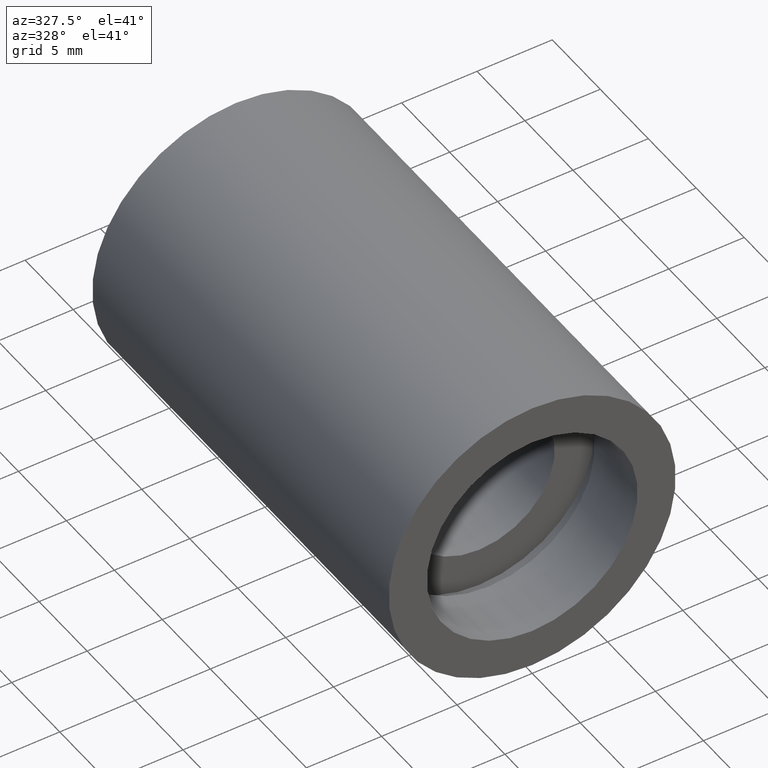
[diagram: clean part render]
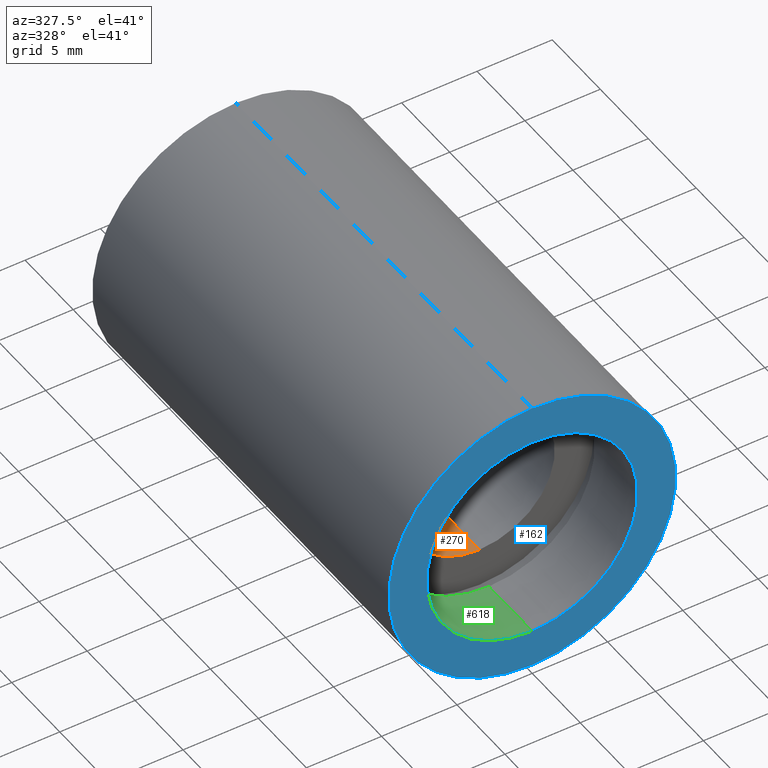
[diagram: same view with three faces highlighted in distinct colors, each labeled with its STEP entity id]
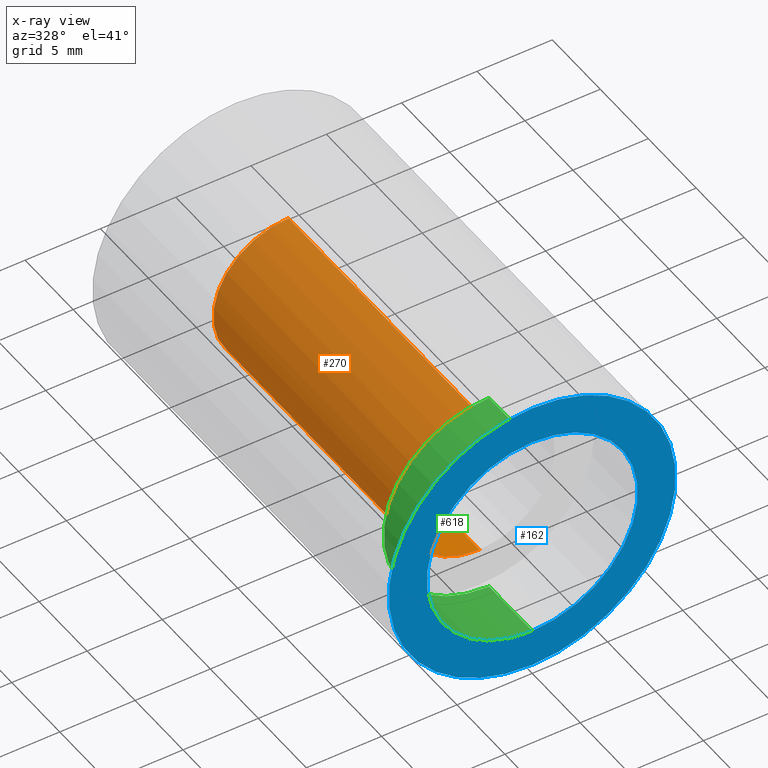
[diagram: x-ray of the same camera — body ghosted, the three highlighted faces saturated]
A machine part, auxiliary view with three faces highlighted in distinct colors.
The next image is the same camera in x-ray (body ghosted, the three faces saturated) — at least one of them is partly hidden behind the body in this view.
Their STEP definitions:

[orange] entity #270 — the highlighted cylindrical surface (partial cylindrical patch) has radius 5 mm, axis along (-0, 1, -0).
#7 = DIRECTION ( 'NONE',  ( -0.0000000000000000000, 1.000000000000000000, -0.0000000000000000000 ) ) ;
#51 = EDGE_LOOP ( 'NONE', ( #458, #215, #588, #137 ) ) ;
#57 = LINE ( 'NONE', #206, #256 ) ;
#65 = CARTESIAN_POINT ( 'NONE',  ( 0.0000000000000000000, 5.499999999999976900, 5.000000000000019500 ) ) ;
#107 = CIRCLE ( 'NONE', #606, 5.000000000000019500 ) ;
#117 = VERTEX_POINT ( 'NONE', #570 ) ;
#121 = CARTESIAN_POINT ( 'NONE',  ( 6.123233995736789000E-016, 25.39999999999997700, -5.000000000000019500 ) ) ;
#132 = DIRECTION ( 'NONE',  ( -0.0000000000000000000, 1.000000000000000000, -0.0000000000000000000 ) ) ;
#137 = ORIENTED_EDGE ( 'NONE', *, *, #358, .F. ) ;
#179 = FACE_OUTER_BOUND ( 'NONE', #51, .T. ) ;
#196 = CARTESIAN_POINT ( 'NONE',  ( 0.0000000000000000000, 161.3761669434274500, 0.0000000000000000000 ) ) ;
#197 = DIRECTION ( 'NONE',  ( -0.0000000000000000000, 1.000000000000000000, -0.0000000000000000000 ) ) ;
#206 = CARTESIAN_POINT ( 'NONE',  ( 0.0000000000000000000, 161.3761669434274500, 5.000000000000019500 ) ) ;
#215 = ORIENTED_EDGE ( 'NONE', *, *, #314, .T. ) ;
#241 = AXIS2_PLACEMENT_3D ( 'NONE', #196, #579, #577 ) ;
#246 = CARTESIAN_POINT ( 'NONE',  ( 0.0000000000000000000, 25.39999999999997700, 5.000000000000019500 ) ) ;
#256 = VECTOR ( 'NONE', #305, 1000.000000000000000 ) ;
#267 = VERTEX_POINT ( 'NONE', #246 ) ;
#270 = ADVANCED_FACE ( 'NONE', ( #179 ), #584, .F. ) ;
#272 = DIRECTION ( 'NONE',  ( 0.0000000000000000000, 0.0000000000000000000, 1.000000000000000000 ) ) ;
#305 = DIRECTION ( 'NONE',  ( -0.0000000000000000000, 1.000000000000000000, -0.0000000000000000000 ) ) ;
#314 = EDGE_CURVE ( 'NONE', #117, #337, #608, .T. ) ;
#337 = VERTEX_POINT ( 'NONE', #121 ) ;
#358 = EDGE_CURVE ( 'NONE', #382, #267, #57, .T. ) ;
#368 = EDGE_CURVE ( 'NONE', #337, #267, #551, .T. ) ;
#382 = VERTEX_POINT ( 'NONE', #65 ) ;
#391 = CARTESIAN_POINT ( 'NONE',  ( 6.123233995736789000E-016, 161.3761669434274500, -5.000000000000019500 ) ) ;
#458 = ORIENTED_EDGE ( 'NONE', *, *, #565, .F. ) ;
#480 = VECTOR ( 'NONE', #7, 1000.000000000000000 ) ;
#488 = CARTESIAN_POINT ( 'NONE',  ( 0.0000000000000000000, 25.39999999999997700, 0.0000000000000000000 ) ) ;
#492 = DIRECTION ( 'NONE',  ( 0.0000000000000000000, 0.0000000000000000000, 1.000000000000000000 ) ) ;
#526 = AXIS2_PLACEMENT_3D ( 'NONE', #488, #197, #492 ) ;
#551 = CIRCLE ( 'NONE', #526, 5.000000000000019500 ) ;
#553 = CARTESIAN_POINT ( 'NONE',  ( 0.0000000000000000000, 5.499999999999976900, 0.0000000000000000000 ) ) ;
#565 = EDGE_CURVE ( 'NONE', #117, #382, #107, .T. ) ;
#570 = CARTESIAN_POINT ( 'NONE',  ( 6.123233995736789000E-016, 5.499999999999976900, -5.000000000000019500 ) ) ;
#577 = DIRECTION ( 'NONE',  ( 0.0000000000000000000, 0.0000000000000000000, 1.000000000000000000 ) ) ;
#579 = DIRECTION ( 'NONE',  ( -0.0000000000000000000, 1.000000000000000000, -0.0000000000000000000 ) ) ;
#584 = CYLINDRICAL_SURFACE ( 'NONE', #241, 5.000000000000019500 ) ;
#588 = ORIENTED_EDGE ( 'NONE', *, *, #368, .T. ) ;
#606 = AXIS2_PLACEMENT_3D ( 'NONE', #553, #132, #272 ) ;
#608 = LINE ( 'NONE', #391, #480 ) ;

[blue] entity #162 — the highlighted planar face has unit normal (-0, 1, 0).
#6 = EDGE_CURVE ( 'NONE', #595, #512, #475, .T. ) ;
#68 = CARTESIAN_POINT ( 'NONE',  ( 0.0000000000000000000, -2.775557561562891400E-014, 9.525000000000019900 ) ) ;
#78 = AXIS2_PLACEMENT_3D ( 'NONE', #321, #93, #466 ) ;
#93 = DIRECTION ( 'NONE',  ( -0.0000000000000000000, 1.000000000000000000, 0.0000000000000000000 ) ) ;
#101 = FACE_OUTER_BOUND ( 'NONE', #509, .T. ) ;
#103 = AXIS2_PLACEMENT_3D ( 'NONE', #194, #114, #153 ) ;
#111 = VERTEX_POINT ( 'NONE', #624 ) ;
#114 = DIRECTION ( 'NONE',  ( -0.0000000000000000000, 1.000000000000000000, -0.0000000000000000000 ) ) ;
#129 = AXIS2_PLACEMENT_3D ( 'NONE', #212, #351, #359 ) ;
#141 = CIRCLE ( 'NONE', #578, 9.525000000000019900 ) ;
#153 = DIRECTION ( 'NONE',  ( 0.0000000000000000000, 0.0000000000000000000, 1.000000000000000000 ) ) ;
#162 = ADVANCED_FACE ( 'NONE', ( #101, #340 ), #282, .F. ) ;
#173 = EDGE_CURVE ( 'NONE', #111, #467, #455, .T. ) ;
#194 = CARTESIAN_POINT ( 'NONE',  ( 0.0000000000000000000, -2.775557561562891400E-014, 0.0000000000000000000 ) ) ;
#195 = CIRCLE ( 'NONE', #103, 7.000000000000020400 ) ;
#200 = DIRECTION ( 'NONE',  ( 0.0000000000000000000, 0.0000000000000000000, 1.000000000000000000 ) ) ;
#212 = CARTESIAN_POINT ( 'NONE',  ( 0.0000000000000000000, -2.775557561562891400E-014, 0.0000000000000000000 ) ) ;
#273 = ORIENTED_EDGE ( 'NONE', *, *, #319, .T. ) ;
#282 = PLANE ( 'NONE',  #78 ) ;
#319 = EDGE_CURVE ( 'NONE', #512, #595, #195, .T. ) ;
#321 = CARTESIAN_POINT ( 'NONE',  ( 7.000000000000020400, -1.634585625335647100E-014, 0.0000000000000000000 ) ) ;
#324 = CARTESIAN_POINT ( 'NONE',  ( 0.0000000000000000000, -2.775557561562891400E-014, 0.0000000000000000000 ) ) ;
#340 = FACE_BOUND ( 'NONE', #418, .T. ) ;
#351 = DIRECTION ( 'NONE',  ( -0.0000000000000000000, 1.000000000000000000, -0.0000000000000000000 ) ) ;
#356 = ORIENTED_EDGE ( 'NONE', *, *, #413, .F. ) ;
#359 = DIRECTION ( 'NONE',  ( 0.0000000000000000000, 0.0000000000000000000, 1.000000000000000000 ) ) ;
#379 = DIRECTION ( 'NONE',  ( -0.0000000000000000000, 1.000000000000000000, -0.0000000000000000000 ) ) ;
#400 = CARTESIAN_POINT ( 'NONE',  ( 0.0000000000000000000, -2.775557561562891400E-014, 7.000000000000020400 ) ) ;
#413 = EDGE_CURVE ( 'NONE', #467, #111, #141, .T. ) ;
#418 = EDGE_LOOP ( 'NONE', ( #273, #548 ) ) ;
#455 = CIRCLE ( 'NONE', #586, 9.525000000000019900 ) ;
#466 = DIRECTION ( 'NONE',  ( 0.0000000000000000000, 0.0000000000000000000, 1.000000000000000000 ) ) ;
#467 = VERTEX_POINT ( 'NONE', #68 ) ;
#475 = CIRCLE ( 'NONE', #129, 7.000000000000020400 ) ;
#490 = CARTESIAN_POINT ( 'NONE',  ( 0.0000000000000000000, -2.775557561562891400E-014, 0.0000000000000000000 ) ) ;
#493 = ORIENTED_EDGE ( 'NONE', *, *, #173, .F. ) ;
#509 = EDGE_LOOP ( 'NONE', ( #356, #493 ) ) ;
#512 = VERTEX_POINT ( 'NONE', #400 ) ;
#518 = DIRECTION ( 'NONE',  ( 0.0000000000000000000, 0.0000000000000000000, 1.000000000000000000 ) ) ;
#540 = DIRECTION ( 'NONE',  ( -0.0000000000000000000, 1.000000000000000000, -0.0000000000000000000 ) ) ;
#548 = ORIENTED_EDGE ( 'NONE', *, *, #6, .T. ) ;
#569 = CARTESIAN_POINT ( 'NONE',  ( 8.572527594031496900E-016, -2.775557561562891400E-014, -7.000000000000020400 ) ) ;
#578 = AXIS2_PLACEMENT_3D ( 'NONE', #490, #540, #200 ) ;
#586 = AXIS2_PLACEMENT_3D ( 'NONE', #324, #379, #518 ) ;
#595 = VERTEX_POINT ( 'NONE', #569 ) ;
#624 = CARTESIAN_POINT ( 'NONE',  ( 1.166476076187856400E-015, -2.775557561562891400E-014, -9.525000000000019900 ) ) ;

[green] entity #618 — the highlighted cylindrical surface (partial cylindrical patch) has radius 7 mm, axis along (-0, 1, -0).
#6 = EDGE_CURVE ( 'NONE', #595, #512, #475, .T. ) ;
#35 = VERTEX_POINT ( 'NONE', #507 ) ;
#54 = CYLINDRICAL_SURFACE ( 'NONE', #489, 7.000000000000020400 ) ;
#71 = ORIENTED_EDGE ( 'NONE', *, *, #495, .T. ) ;
#72 = EDGE_CURVE ( 'NONE', #595, #35, #519, .T. ) ;
#125 = DIRECTION ( 'NONE',  ( -0.0000000000000000000, 1.000000000000000000, -0.0000000000000000000 ) ) ;
#129 = AXIS2_PLACEMENT_3D ( 'NONE', #212, #351, #359 ) ;
#190 = EDGE_LOOP ( 'NONE', ( #344, #243, #71, #302 ) ) ;
#198 = LINE ( 'NONE', #436, #304 ) ;
#209 = CARTESIAN_POINT ( 'NONE',  ( 0.0000000000000000000, 4.499999999999976000, 0.0000000000000000000 ) ) ;
#212 = CARTESIAN_POINT ( 'NONE',  ( 0.0000000000000000000, -2.775557561562891400E-014, 0.0000000000000000000 ) ) ;
#234 = CARTESIAN_POINT ( 'NONE',  ( 0.0000000000000000000, 161.3761669434274500, 0.0000000000000000000 ) ) ;
#243 = ORIENTED_EDGE ( 'NONE', *, *, #72, .T. ) ;
#245 = EDGE_CURVE ( 'NONE', #512, #476, #198, .T. ) ;
#275 = CIRCLE ( 'NONE', #311, 7.000000000000020400 ) ;
#297 = DIRECTION ( 'NONE',  ( -0.0000000000000000000, 1.000000000000000000, -0.0000000000000000000 ) ) ;
#302 = ORIENTED_EDGE ( 'NONE', *, *, #245, .F. ) ;
#304 = VECTOR ( 'NONE', #297, 1000.000000000000000 ) ;
#311 = AXIS2_PLACEMENT_3D ( 'NONE', #209, #125, #412 ) ;
#331 = FACE_OUTER_BOUND ( 'NONE', #190, .T. ) ;
#344 = ORIENTED_EDGE ( 'NONE', *, *, #6, .F. ) ;
#351 = DIRECTION ( 'NONE',  ( -0.0000000000000000000, 1.000000000000000000, -0.0000000000000000000 ) ) ;
#359 = DIRECTION ( 'NONE',  ( 0.0000000000000000000, 0.0000000000000000000, 1.000000000000000000 ) ) ;
#400 = CARTESIAN_POINT ( 'NONE',  ( 0.0000000000000000000, -2.775557561562891400E-014, 7.000000000000020400 ) ) ;
#412 = DIRECTION ( 'NONE',  ( 0.0000000000000000000, 0.0000000000000000000, 1.000000000000000000 ) ) ;
#432 = VECTOR ( 'NONE', #611, 1000.000000000000000 ) ;
#436 = CARTESIAN_POINT ( 'NONE',  ( 0.0000000000000000000, 161.3761669434274500, 7.000000000000020400 ) ) ;
#443 = CARTESIAN_POINT ( 'NONE',  ( 0.0000000000000000000, 4.499999999999976000, 7.000000000000020400 ) ) ;
#475 = CIRCLE ( 'NONE', #129, 7.000000000000020400 ) ;
#476 = VERTEX_POINT ( 'NONE', #443 ) ;
#489 = AXIS2_PLACEMENT_3D ( 'NONE', #234, #616, #612 ) ;
#495 = EDGE_CURVE ( 'NONE', #35, #476, #275, .T. ) ;
#507 = CARTESIAN_POINT ( 'NONE',  ( 8.572527594031496900E-016, 4.499999999999976000, -7.000000000000020400 ) ) ;
#512 = VERTEX_POINT ( 'NONE', #400 ) ;
#519 = LINE ( 'NONE', #562, #432 ) ;
#562 = CARTESIAN_POINT ( 'NONE',  ( 8.572527594031496900E-016, 161.3761669434274500, -7.000000000000020400 ) ) ;
#569 = CARTESIAN_POINT ( 'NONE',  ( 8.572527594031496900E-016, -2.775557561562891400E-014, -7.000000000000020400 ) ) ;
#595 = VERTEX_POINT ( 'NONE', #569 ) ;
#611 = DIRECTION ( 'NONE',  ( -0.0000000000000000000, 1.000000000000000000, -0.0000000000000000000 ) ) ;
#612 = DIRECTION ( 'NONE',  ( 0.0000000000000000000, 0.0000000000000000000, 1.000000000000000000 ) ) ;
#616 = DIRECTION ( 'NONE',  ( -0.0000000000000000000, 1.000000000000000000, -0.0000000000000000000 ) ) ;
#618 = ADVANCED_FACE ( 'NONE', ( #331 ), #54, .F. ) ;